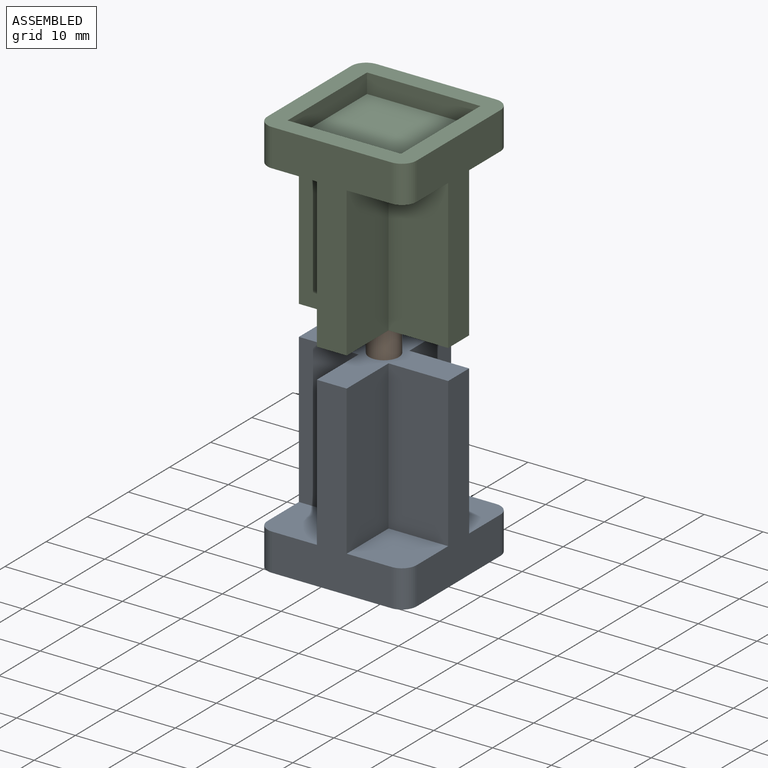
[diagram: assembled view]
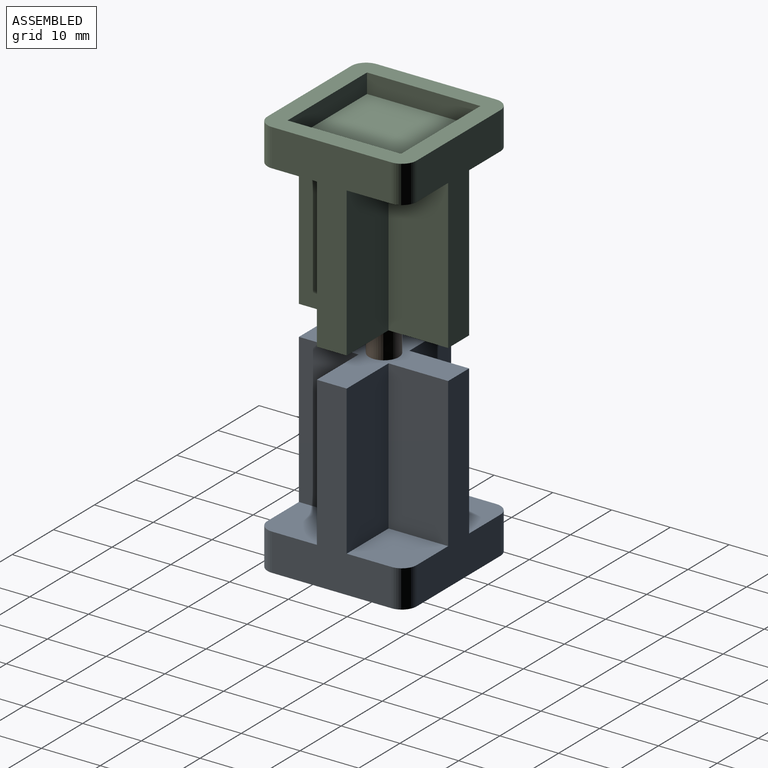
[diagram: assembled view, second angle]
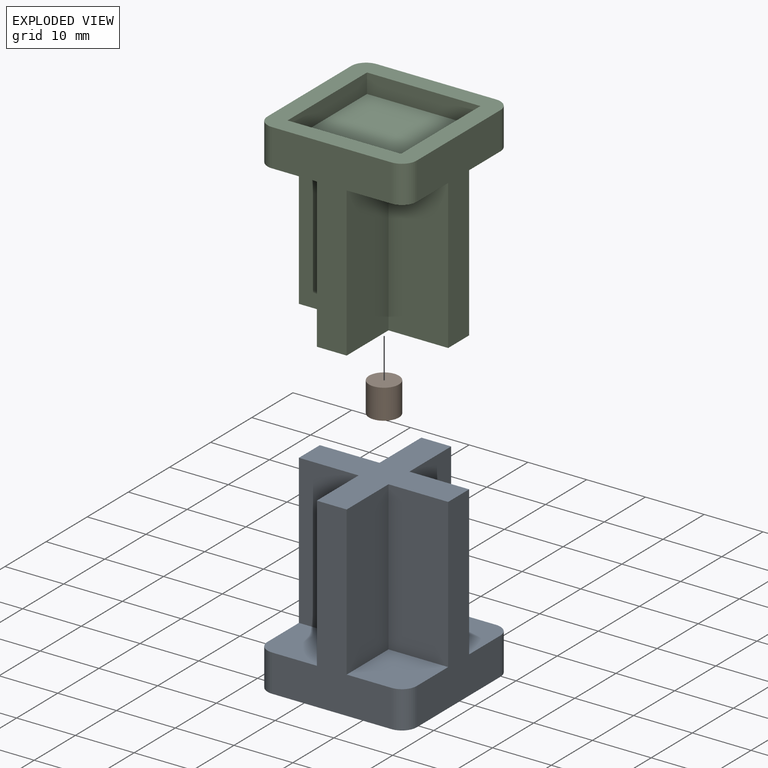
[diagram: exploded view]
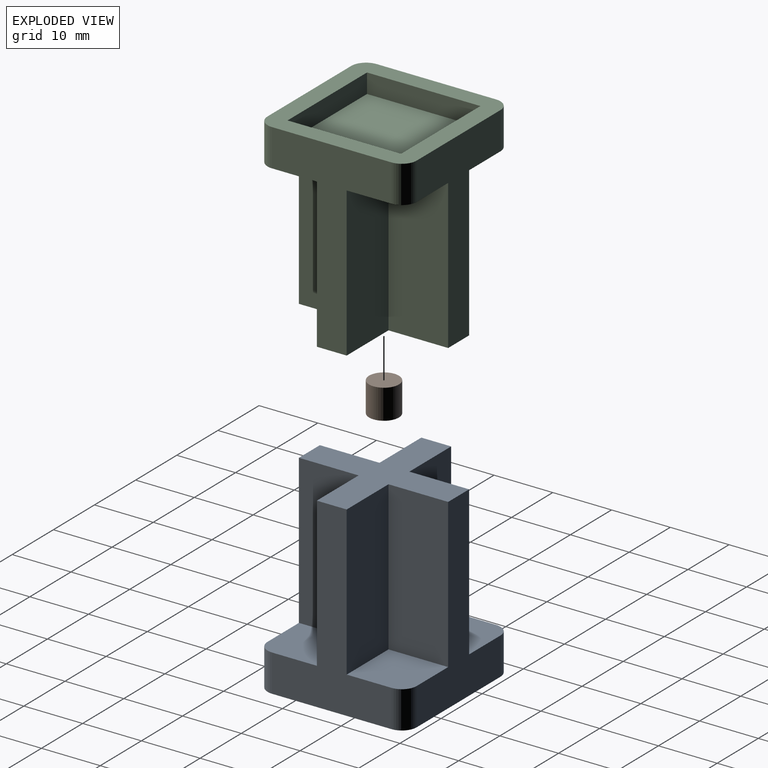
[diagram: exploded view, second angle]
ASSEMBLY  parts=3 mates=2
PART A: 27 faces, bbox 25.4x25.4x31.8 mm
  f0: plane 10.16x10.16mm, normal (0,0,1), area 101.8mm2, adj f4,f5,f9,f18,f25
  f1: plane 10.16x10.16mm, normal (0,0,1), area 101.8mm2, adj f4,f7,f12,f23,f24
  f2: plane 10.16x10.16mm, normal (0,0,1), area 101.8mm2, adj f6,f7,f11,f21,f22
  f3: plane 10.16x10.16mm, normal (0,0,1), area 101.8mm2, adj f5,f6,f10,f19,f20
  f4: plane 31.75x20.32mm, normal (1,0,0), area 258.1mm2, adj f0,f1,f8,f9,f12,f24,f25,f26
  f5: plane 31.75x20.32mm, normal (0,1,0), area 258.1mm2, adj f0,f3,f8,f9,f10,f18,f19,f26
  f6: plane 31.75x20.32mm, normal (-1,0,0), area 258.1mm2, adj f2,f3,f8,f10,f11,f20,f21,f26
  f7: plane 31.75x20.32mm, normal (0,-1,0), area 258.1mm2, adj f1,f2,f8,f11,f12,f22,f23,f26
  f8: plane 25.4x25.4mm, normal (0,0,-1), area 267mm2, adj f4,f5,f6,f7,f9,f10,f11,f12
  f9: cylinder r=2.54mm len=6.35mm, axis (0,0,1), area 25.3mm2, adj f0,f4,f5,f8
  f10: cylinder r=2.54mm len=6.35mm, axis (0,0,-1), area 25.3mm2, adj f3,f5,f6,f8
  f11: cylinder r=2.54mm len=6.35mm, axis (0,0,1), area 25.3mm2, adj f2,f6,f7,f8
  f12: cylinder r=2.54mm len=6.35mm, axis (0,0,-1), area 25.3mm2, adj f1,f4,f7,f8
  f13: plane 19.3x3.3mm, normal (-1,0,0), area 63.7mm2, adj f8,f14,f16,f17
  f14: plane 19.3x3.3mm, normal (0,-1,0), area 63.7mm2, adj f8,f13,f15,f17
  f15: plane 19.3x3.3mm, normal (1,0,0), area 63.7mm2, adj f8,f14,f16,f17
  f16: plane 19.3x3.3mm, normal (0,1,0), area 63.7mm2, adj f8,f13,f15,f17
  f17: plane 19.3x19.3mm, normal (0,0,-1), area 372.6mm2, adj f13,f14,f15,f16
  f18: plane 25.4x10.16mm, normal (1,0,0), area 258.1mm2, adj f0,f5,f25,f26
  f19: plane 25.4x10.16mm, normal (-1,0,0), area 258.1mm2, adj f3,f5,f20,f26
  f20: plane 25.4x10.16mm, normal (0,1,0), area 258.1mm2, adj f3,f6,f19,f26
  f21: plane 25.4x10.16mm, normal (0,-1,0), area 258.1mm2, adj f2,f6,f22,f26
  f22: plane 25.4x10.16mm, normal (-1,0,0), area 258.1mm2, adj f2,f7,f21,f26
  f23: plane 25.4x10.16mm, normal (1,0,0), area 258.1mm2, adj f1,f7,f24,f26
  f24: plane 25.4x10.16mm, normal (0,-1,0), area 258.1mm2, adj f1,f4,f23,f26
  f25: plane 25.4x10.16mm, normal (0,1,0), area 258.1mm2, adj f0,f4,f18,f26
  f26: plane 25.4x25.4mm, normal (0,0,1), area 232.3mm2, adj f4,f5,f6,f7,f18,f19,f20,f21
PART B: 3 faces, bbox 5.1x5.1x5.1 mm
  f0: cylinder r=2.54mm len=5.08mm, axis (0,0,-1), area 81.1mm2, adj f1,f2
  f1: plane 5.08x5.08mm, normal (0,0,1), area 20.3mm2, adj f0
  f2: plane 5.08x5.08mm, normal (0,0,-1), area 20.3mm2, adj f0
PART C: same geometry as A
PLACE A t=(-91.91,110.03,-32.83)mm
PLACE B t=(-23.75,-48.27,-1.08)mm
PLACE C rot(axis=(1,0,0),180deg) t=(-91.91,-194.77,35.75)mm
MATE fastened B.f0 <-> A.f26  axis (0,0,-1) through (-53.81,-42.37,-1.08)mm
MATE fastened B.f0 <-> C.f26  axis (0,0,1) through (-53.81,-42.37,4)mm
